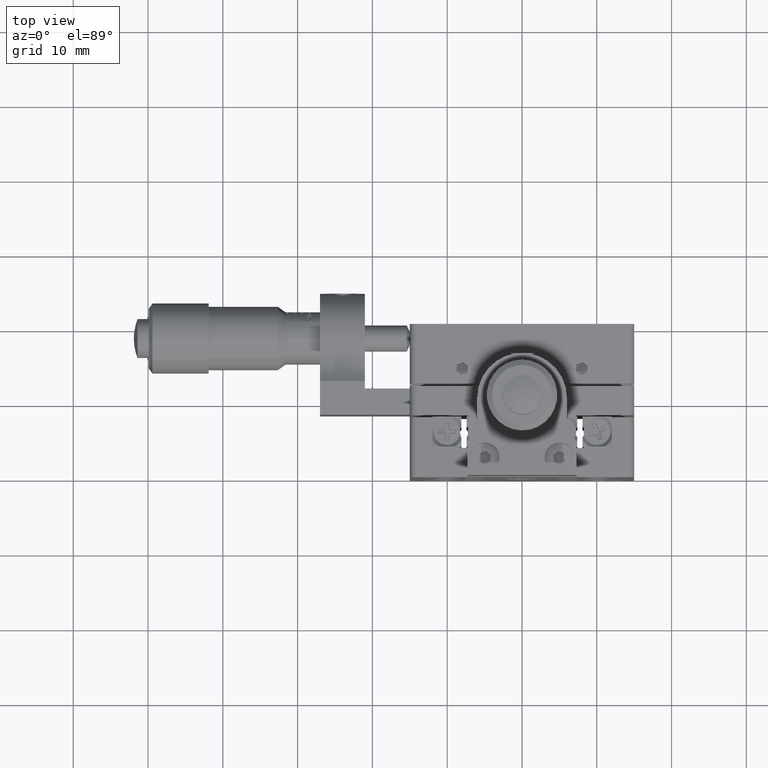
[diagram: clean part render]
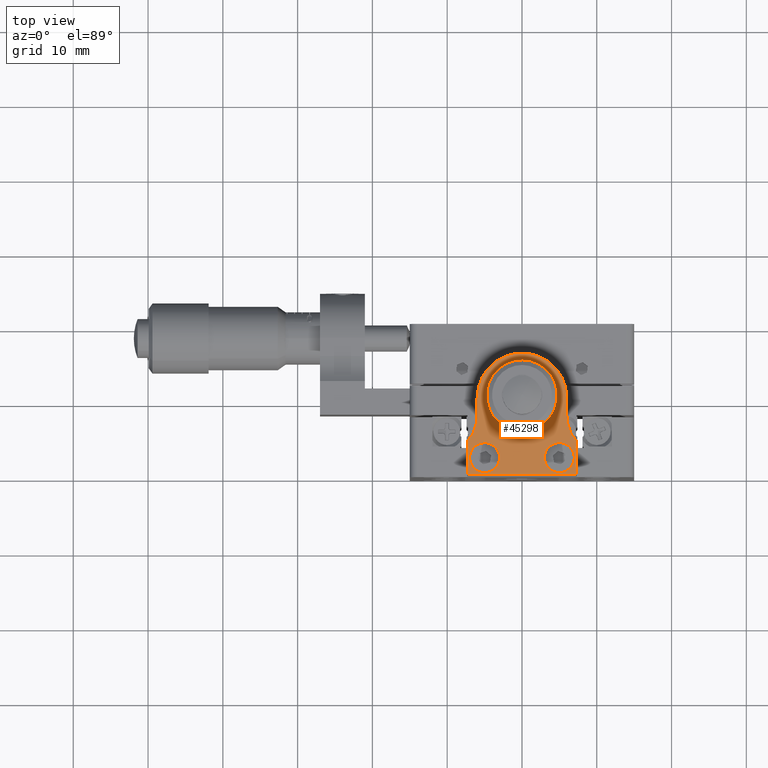
[diagram: same view with one face highlighted and labeled with its STEP entity id]
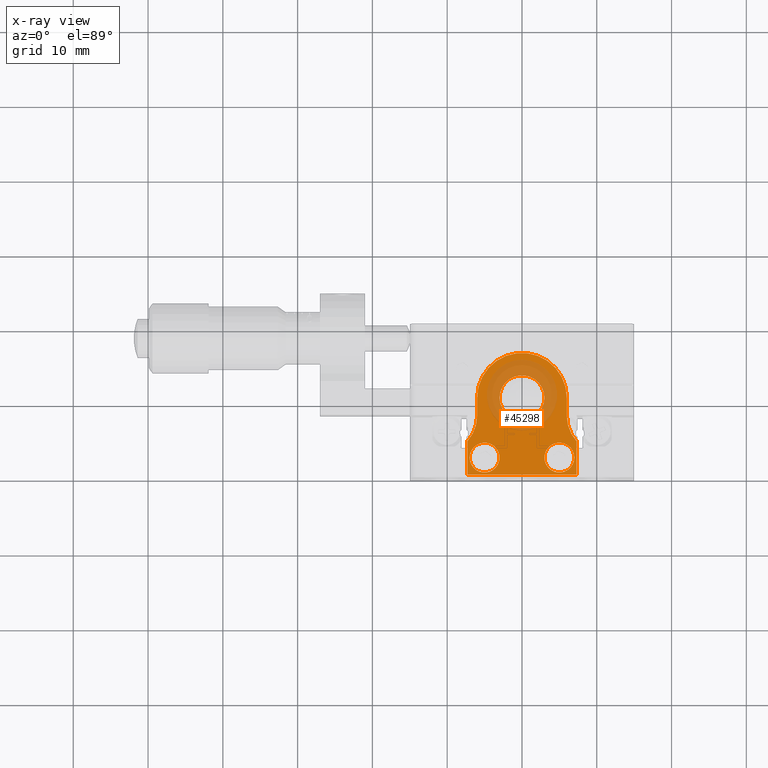
[diagram: x-ray of the same camera — body ghosted, the highlighted face saturated]
A machine part, top view. The second image highlights one B-rep face of the part: STEP entity #45298.
The next image is the same camera in x-ray: the body ghosted, the highlighted face saturated — about 30% of this face is hidden behind the body in this view.
In plain terms, the highlighted planar face has unit normal (-0, 0, -1).
Its self-contained STEP definition (entity closure, byte-faithful):
#265 = EDGE_CURVE ( 'NONE', #24298, #44840, #642, .T. ) ;
#318 = VERTEX_POINT ( 'NONE', #12822 ) ;
#642 = CIRCLE ( 'NONE', #42054, 3.000000000000000400 ) ;
#656 = DIRECTION ( 'NONE',  ( 1.000000000000000000, -4.336808689942017700E-015, 0.0000000000000000000 ) ) ;
#1098 = DIRECTION ( 'NONE',  ( -7.118237074455317600E-030, 2.631711650749079100E-029, -1.000000000000000000 ) ) ;
#1238 = CIRCLE ( 'NONE', #38088, 5.000000000000000900 ) ;
#2444 = DIRECTION ( 'NONE',  ( 2.405761036898942500E-015, -1.000000000000000000, -2.717728928625454900E-029 ) ) ;
#2615 = PLANE ( 'NONE',  #18989 ) ;
#3276 = ORIENTED_EDGE ( 'NONE', *, *, #265, .F. ) ;
#3485 = ORIENTED_EDGE ( 'NONE', *, *, #32850, .T. ) ;
#3778 = EDGE_CURVE ( 'NONE', #14064, #51184, #8358, .T. ) ;
#3863 = EDGE_CURVE ( 'NONE', #29987, #50638, #23991, .T. ) ;
#4333 = EDGE_CURVE ( 'NONE', #29258, #318, #9018, .T. ) ;
#4563 = CARTESIAN_POINT ( 'NONE',  ( -2.585940533811611400E-014, 10.39999999999990600, 27.00000000000001400 ) ) ;
#5751 = VERTEX_POINT ( 'NONE', #23306 ) ;
#5812 = ORIENTED_EDGE ( 'NONE', *, *, #13784, .T. ) ;
#5907 = EDGE_LOOP ( 'NONE', ( #10947, #26714, #14919, #12014, #5812, #19431, #3485, #49279 ) ) ;
#6431 = VECTOR ( 'NONE', #2444, 1000.000000000000000 ) ;
#8358 = CIRCLE ( 'NONE', #32767, 5.000000000000000900 ) ;
#8687 = DIRECTION ( 'NONE',  ( 1.000000000000000000, -4.336808689942028800E-015, 0.0000000000000000000 ) ) ;
#8704 = CARTESIAN_POINT ( 'NONE',  ( -2.585940533811611400E-014, 10.39999999999990600, 27.00000000000001400 ) ) ;
#8713 = CARTESIAN_POINT ( 'NONE',  ( -2.585940533811611400E-014, 10.39999999999990600, 27.00000000000001400 ) ) ;
#8887 = DIRECTION ( 'NONE',  ( 1.000000000000000000, -4.047688110612549400E-015, 0.0000000000000000000 ) ) ;
#9018 = LINE ( 'NONE', #18396, #19152 ) ;
#9293 = EDGE_CURVE ( 'NONE', #318, #14064, #48333, .T. ) ;
#9569 = CIRCLE ( 'NONE', #17199, 6.000000000000000000 ) ;
#9914 = CIRCLE ( 'NONE', #54040, 3.000000000000000400 ) ;
#10468 = EDGE_CURVE ( 'NONE', #24611, #29258, #19698, .T. ) ;
#10947 = ORIENTED_EDGE ( 'NONE', *, *, #10468, .T. ) ;
#11262 = CARTESIAN_POINT ( 'NONE',  ( -11.00000000000001600, 7.963034344160010200, 27.00000000000001800 ) ) ;
#11662 = DIRECTION ( 'NONE',  ( 1.000000000000000000, -4.336808689942028800E-015, 0.0000000000000000000 ) ) ;
#12014 = ORIENTED_EDGE ( 'NONE', *, *, #3778, .T. ) ;
#12701 = EDGE_LOOP ( 'NONE', ( #23609, #34429 ) ) ;
#12768 = DIRECTION ( 'NONE',  ( 2.183438615096168900E-015, -1.000000000000000000, -2.717778446677873900E-029 ) ) ;
#12822 = CARTESIAN_POINT ( 'NONE',  ( 7.300000000000006900, 0.09999999999987346800, 27.00000000000001400 ) ) ;
#12862 = ORIENTED_EDGE ( 'NONE', *, *, #36385, .F. ) ;
#13076 = DIRECTION ( 'NONE',  ( 7.118237074455317600E-030, -2.631711650749079100E-029, 1.000000000000000000 ) ) ;
#13624 = FACE_BOUND ( 'NONE', #56129, .T. ) ;
#13691 = AXIS2_PLACEMENT_3D ( 'NONE', #30717, #25573, #34541 ) ;
#13784 = EDGE_CURVE ( 'NONE', #51184, #52978, #40324, .T. ) ;
#14064 = VERTEX_POINT ( 'NONE', #42147 ) ;
#14099 = DIRECTION ( 'NONE',  ( 1.000000000000000000, -4.336808689942028800E-015, 0.0000000000000000000 ) ) ;
#14117 = CARTESIAN_POINT ( 'NONE',  ( 5.999999999999974200, 10.39999999999990300, 27.00000000000001400 ) ) ;
#14919 = ORIENTED_EDGE ( 'NONE', *, *, #9293, .T. ) ;
#15263 = EDGE_CURVE ( 'NONE', #52978, #42048, #9569, .T. ) ;
#15732 = CARTESIAN_POINT ( 'NONE',  ( -3.000000000000026600, 10.39999999999991900, 27.00000000000001400 ) ) ;
#16082 = AXIS2_PLACEMENT_3D ( 'NONE', #55074, #29331, #11662 ) ;
#16332 = FACE_BOUND ( 'NONE', #48205, .T. ) ;
#17199 = AXIS2_PLACEMENT_3D ( 'NONE', #8713, #21649, #656 ) ;
#17505 = CARTESIAN_POINT ( 'NONE',  ( -7.299999999999999800, 0.09999999999993103300, 27.00000000000001400 ) ) ;
#18396 = CARTESIAN_POINT ( 'NONE',  ( -7.299999999999999800, 0.09999999999993103300, 27.00000000000001400 ) ) ;
#18989 = AXIS2_PLACEMENT_3D ( 'NONE', #11262, #24342, #49770 ) ;
#19152 = VECTOR ( 'NONE', #52717, 1000.000000000000000 ) ;
#19431 = ORIENTED_EDGE ( 'NONE', *, *, #15263, .T. ) ;
#19673 = CIRCLE ( 'NONE', #16082, 1.999999999999994900 ) ;
#19698 = LINE ( 'NONE', #17505, #52964 ) ;
#20362 = CARTESIAN_POINT ( 'NONE',  ( -6.000000000000025800, 10.39999999999991300, 27.00000000000001400 ) ) ;
#21649 = DIRECTION ( 'NONE',  ( 7.118237074455317600E-030, -2.631711650749079100E-029, 1.000000000000000000 ) ) ;
#23015 = CARTESIAN_POINT ( 'NONE',  ( 4.999999999999988500, 2.399999999999875100, 27.00000000000001400 ) ) ;
#23306 = CARTESIAN_POINT ( 'NONE',  ( 6.999999999999984000, 2.399999999999866700, 27.00000000000001400 ) ) ;
#23609 = ORIENTED_EDGE ( 'NONE', *, *, #3863, .F. ) ;
#23991 = CIRCLE ( 'NONE', #53087, 1.999999999999994900 ) ;
#24298 = VERTEX_POINT ( 'NONE', #46210 ) ;
#24342 = DIRECTION ( 'NONE',  ( -7.253822542539975800E-030, 2.631711650749079100E-029, -1.000000000000000000 ) ) ;
#24611 = VERTEX_POINT ( 'NONE', #52815 ) ;
#25573 = DIRECTION ( 'NONE',  ( 7.118237074455317600E-030, -2.631711650749079100E-029, 1.000000000000000000 ) ) ;
#25987 = DIRECTION ( 'NONE',  ( 1.000000000000000000, -4.047688110612549400E-015, 0.0000000000000000000 ) ) ;
#26240 = CARTESIAN_POINT ( 'NONE',  ( -7.299999999999999800, 0.09999999999993103300, 27.00000000000001400 ) ) ;
#26714 = ORIENTED_EDGE ( 'NONE', *, *, #4333, .T. ) ;
#28155 = LINE ( 'NONE', #20362, #6431 ) ;
#28696 = VERTEX_POINT ( 'NONE', #53400 ) ;
#29258 = VERTEX_POINT ( 'NONE', #26240 ) ;
#29331 = DIRECTION ( 'NONE',  ( 7.118237074455317600E-030, -2.631711650749079100E-029, 1.000000000000000000 ) ) ;
#29643 = CARTESIAN_POINT ( 'NONE',  ( 7.300000000000006900, 0.09999999999987346800, 27.00000000000001400 ) ) ;
#29767 = CIRCLE ( 'NONE', #13691, 1.999999999999994900 ) ;
#29924 = FACE_BOUND ( 'NONE', #12701, .T. ) ;
#29987 = VERTEX_POINT ( 'NONE', #40899 ) ;
#30717 = CARTESIAN_POINT ( 'NONE',  ( -5.000000000000011500, 2.399999999999930600, 27.00000000000001400 ) ) ;
#32123 = EDGE_CURVE ( 'NONE', #44840, #24298, #9914, .T. ) ;
#32503 = CARTESIAN_POINT ( 'NONE',  ( -7.000000000000006200, 2.399999999999939500, 27.00000000000001400 ) ) ;
#32767 = AXIS2_PLACEMENT_3D ( 'NONE', #48147, #52122, #52493 ) ;
#32850 = EDGE_CURVE ( 'NONE', #42048, #50496, #28155, .T. ) ;
#33826 = DIRECTION ( 'NONE',  ( -3.339920932414039700E-015, 1.000000000000000000, 2.717959018963361500E-029 ) ) ;
#34015 = FACE_OUTER_BOUND ( 'NONE', #5907, .T. ) ;
#34429 = ORIENTED_EDGE ( 'NONE', *, *, #51354, .F. ) ;
#34541 = DIRECTION ( 'NONE',  ( 1.000000000000000000, -4.336808689942028800E-015, 0.0000000000000000000 ) ) ;
#34747 = CARTESIAN_POINT ( 'NONE',  ( -5.000000000000011500, 2.399999999999930600, 27.00000000000001400 ) ) ;
#35522 = VECTOR ( 'NONE', #33826, 1000.000000000000000 ) ;
#36385 = EDGE_CURVE ( 'NONE', #5751, #28696, #19673, .T. ) ;
#37471 = ORIENTED_EDGE ( 'NONE', *, *, #32123, .F. ) ;
#38088 = AXIS2_PLACEMENT_3D ( 'NONE', #52802, #1098, #48637 ) ;
#40121 = CARTESIAN_POINT ( 'NONE',  ( -6.000000000000023100, 7.963034344159961400, 27.00000000000001400 ) ) ;
#40324 = LINE ( 'NONE', #14117, #51151 ) ;
#40899 = CARTESIAN_POINT ( 'NONE',  ( -3.000000000000016400, 2.399999999999922200, 27.00000000000001400 ) ) ;
#41047 = ORIENTED_EDGE ( 'NONE', *, *, #53908, .F. ) ;
#42048 = VERTEX_POINT ( 'NONE', #50251 ) ;
#42054 = AXIS2_PLACEMENT_3D ( 'NONE', #4563, #47410, #8887 ) ;
#42147 = CARTESIAN_POINT ( 'NONE',  ( 7.299999999999990100, 4.599999999999876200, 27.00000000000001400 ) ) ;
#43415 = DIRECTION ( 'NONE',  ( 7.118237074455317600E-030, -2.631711650749079100E-029, 1.000000000000000000 ) ) ;
#44840 = VERTEX_POINT ( 'NONE', #15732 ) ;
#45053 = CIRCLE ( 'NONE', #54472, 1.999999999999994900 ) ;
#45298 = ADVANCED_FACE ( 'NONE', ( #29924, #16332, #34015, #13624 ), #2615, .F. ) ;
#46210 = CARTESIAN_POINT ( 'NONE',  ( 2.999999999999974700, 10.39999999999989400, 27.00000000000001400 ) ) ;
#47410 = DIRECTION ( 'NONE',  ( 7.118237074455317600E-030, -2.631711650749079100E-029, 1.000000000000000000 ) ) ;
#48147 = CARTESIAN_POINT ( 'NONE',  ( 10.99999999999998600, 7.963034344159899200, 27.00000000000001100 ) ) ;
#48205 = EDGE_LOOP ( 'NONE', ( #12862, #41047 ) ) ;
#48333 = LINE ( 'NONE', #29643, #35522 ) ;
#48637 = DIRECTION ( 'NONE',  ( -1.000000000000000000, 4.163336342344336200E-015, 0.0000000000000000000 ) ) ;
#49279 = ORIENTED_EDGE ( 'NONE', *, *, #52021, .T. ) ;
#49770 = DIRECTION ( 'NONE',  ( -1.000000000000000000, 4.232725281383382500E-015, 7.253822542540086500E-030 ) ) ;
#50251 = CARTESIAN_POINT ( 'NONE',  ( -6.000000000000025800, 10.39999999999991300, 27.00000000000001400 ) ) ;
#50496 = VERTEX_POINT ( 'NONE', #40121 ) ;
#50638 = VERTEX_POINT ( 'NONE', #32503 ) ;
#51151 = VECTOR ( 'NONE', #52409, 1000.000000000000000 ) ;
#51184 = VERTEX_POINT ( 'NONE', #55521 ) ;
#51354 = EDGE_CURVE ( 'NONE', #50638, #29987, #29767, .T. ) ;
#52021 = EDGE_CURVE ( 'NONE', #50496, #24611, #1238, .T. ) ;
#52122 = DIRECTION ( 'NONE',  ( -7.118237074455317600E-030, 2.631711650749079100E-029, -1.000000000000000000 ) ) ;
#52409 = DIRECTION ( 'NONE',  ( -3.117598510611266500E-015, 1.000000000000000000, 2.718008537015781200E-029 ) ) ;
#52493 = DIRECTION ( 'NONE',  ( 1.000000000000000000, -4.163336342344336200E-015, 0.0000000000000000000 ) ) ;
#52717 = DIRECTION ( 'NONE',  ( 1.000000000000000000, -4.110264646001144800E-015, -7.253822542540082300E-030 ) ) ;
#52802 = CARTESIAN_POINT ( 'NONE',  ( -11.00000000000001600, 7.963034344160010200, 27.00000000000001800 ) ) ;
#52815 = CARTESIAN_POINT ( 'NONE',  ( -7.300000000000012300, 4.599999999999934800, 27.00000000000001400 ) ) ;
#52964 = VECTOR ( 'NONE', #12768, 1000.000000000000000 ) ;
#52978 = VERTEX_POINT ( 'NONE', #54912 ) ;
#53087 = AXIS2_PLACEMENT_3D ( 'NONE', #34747, #43415, #8687 ) ;
#53331 = DIRECTION ( 'NONE',  ( 7.118237074455317600E-030, -2.631711650749079100E-029, 1.000000000000000000 ) ) ;
#53400 = CARTESIAN_POINT ( 'NONE',  ( 2.999999999999993800, 2.399999999999884000, 27.00000000000001400 ) ) ;
#53908 = EDGE_CURVE ( 'NONE', #28696, #5751, #45053, .T. ) ;
#54040 = AXIS2_PLACEMENT_3D ( 'NONE', #8704, #13076, #25987 ) ;
#54472 = AXIS2_PLACEMENT_3D ( 'NONE', #23015, #53331, #14099 ) ;
#54912 = CARTESIAN_POINT ( 'NONE',  ( 5.999999999999974200, 10.39999999999990300, 27.00000000000001400 ) ) ;
#55074 = CARTESIAN_POINT ( 'NONE',  ( 4.999999999999988500, 2.399999999999875100, 27.00000000000001400 ) ) ;
#55521 = CARTESIAN_POINT ( 'NONE',  ( 5.999999999999978700, 7.963034344159951600, 27.00000000000001400 ) ) ;
#56129 = EDGE_LOOP ( 'NONE', ( #37471, #3276 ) ) ;